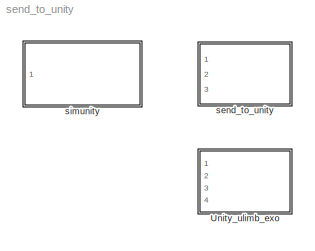
MODEL send_to_unity
KIND library
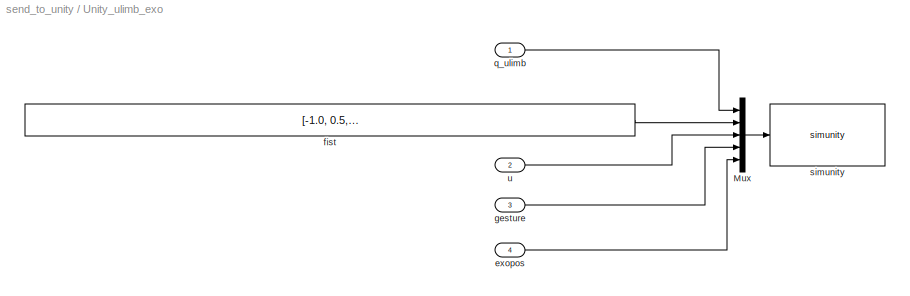
BLOCK [SubSystem] Unity_ulimb_exo
  Ports = [4]
  RequestExecContextInheritance = off
  SID = 14
  Variant = off
BLOCK [Mux] Unity_ulimb_exo/Mux
  DisplayOption = bar
  Inputs = [12, 26, 42, 2 15]
  Ports = [5, 1]
  SID = 19
BLOCK [Inport] Unity_ulimb_exo/exopos
  IconDisplay = Port number
  Port = 4
  SID = 18
BLOCK [Constant] Unity_ulimb_exo/fist
  SID = 20
  Value = [-1.0, 0.5, 0.5, 0.5, 0, 1,  0, 0.7, 0.7, 0.7, 0, 1.3, 1.3, 1.3, 0, 0, 0, 1.3, 1.3, 1.3, 0, 0, 0, 1.3, 1.3, 1.3]
BLOCK [Inport] Unity_ulimb_exo/gesture
  IconDisplay = Port number
  Port = 3
  SID = 17
BLOCK [Inport] Unity_ulimb_exo/q_ulimb
  IconDisplay = Port number
  SID = 15
BLOCK [Reference] Unity_ulimb_exo/simunity  REF=simunity/simunity
  AllowZeroVariantControls = off
  FunctionWithSeparateData = off
  GeneratePreprocessorConditionals = off
  Ports = [1]
  PropagateVariantConditions = off
  SID = 21
  ShowPortLabels = FromPortIcon
  SourceBlock = simunity/simunity
  SystemSampleTime = -1
BLOCK [Inport] Unity_ulimb_exo/u
  IconDisplay = Port number
  Port = 2
  SID = 16
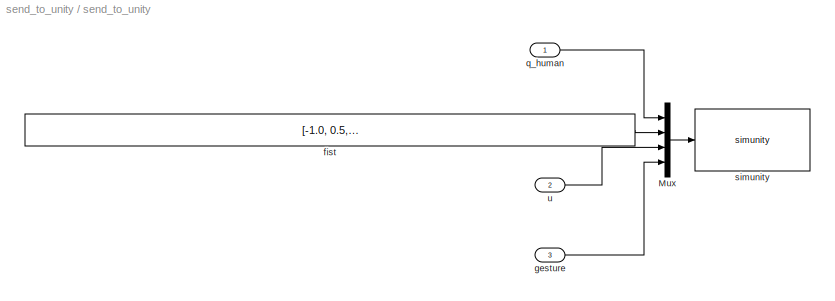
BLOCK [SubSystem] send_to_unity
  Ports = [3]
  RequestExecContextInheritance = off
  SID = 7
  Variant = off
BLOCK [Mux] send_to_unity/Mux
  DisplayOption = bar
  Inputs = [12, 26, 42, 2]
  Ports = [4, 1]
  SID = 11
BLOCK [Constant] send_to_unity/fist
  SID = 12
  Value = [-1.0, 0.5, 0.5, 0.5, 0, 1,  0, 0.7, 0.7, 0.7, 0, 1.3, 1.3, 1.3, 0, 0, 0, 1.3, 1.3, 1.3, 0, 0, 0, 1.3, 1.3, 1.3]
BLOCK [Inport] send_to_unity/gesture
  IconDisplay = Port number
  Port = 3
  SID = 10
BLOCK [Inport] send_to_unity/q_human
  IconDisplay = Port number
  SID = 8
BLOCK [Reference] send_to_unity/simunity  REF=simunity/simunity
  AllowZeroVariantControls = off
  FunctionWithSeparateData = off
  GeneratePreprocessorConditionals = off
  Ports = [1]
  PropagateVariantConditions = off
  SID = 13
  ShowPortLabels = FromPortIcon
  SourceBlock = simunity/simunity
  SystemSampleTime = -1
BLOCK [Inport] send_to_unity/u
  IconDisplay = Port number
  Port = 2
  SID = 9
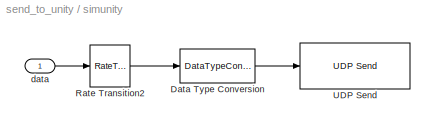
BLOCK [SubSystem] simunity
  Ports = [1]
  RequestExecContextInheritance = off
  SID = 5
  Variant = off
BLOCK [DataTypeConversion] simunity/Data Type Conversion
  OutDataTypeStr = single
  RndMeth = Round
  SID = 1
  SaturateOnIntegerOverflow = off
BLOCK [RateTransition] simunity/Rate Transition2
  OutPortSampleTime = 1/50
  SID = 2
BLOCK [Reference] simunity/UDP Send  REF=instrumentlib/UDP Send
  ByteOrder = LittleEndian
  EnableBlockingMode = on
  Host = localhost
  LocalPort = -1
  Port = 8051
  Ports = [1]
  SID = 3
  SourceBlock = instrumentlib/UDP Send
  SourceProductBaseCode = IC
  SourceProductName = Instrument Control Toolbox
  SourceType = UDP Send
BLOCK [Inport] simunity/data
  IconDisplay = Port number
  SID = 6
LINE Unity_ulimb_exo/Mux:1 -> Unity_ulimb_exo/simunity:1
LINE Unity_ulimb_exo/exopos:1 -> Unity_ulimb_exo/Mux:5
LINE Unity_ulimb_exo/fist:1 -> Unity_ulimb_exo/Mux:2
LINE Unity_ulimb_exo/gesture:1 -> Unity_ulimb_exo/Mux:4
LINE Unity_ulimb_exo/q_ulimb:1 -> Unity_ulimb_exo/Mux:1
LINE Unity_ulimb_exo/u:1 -> Unity_ulimb_exo/Mux:3
LINE send_to_unity/Mux:1 -> send_to_unity/simunity:1
LINE send_to_unity/fist:1 -> send_to_unity/Mux:2
LINE send_to_unity/gesture:1 -> send_to_unity/Mux:4
LINE send_to_unity/q_human:1 -> send_to_unity/Mux:1
LINE send_to_unity/u:1 -> send_to_unity/Mux:3
LINE simunity/Data Type Conversion:1 -> simunity/UDP Send:1
LINE simunity/Rate Transition2:1 -> simunity/Data Type Conversion:1
LINE simunity/data:1 -> simunity/Rate Transition2:1
